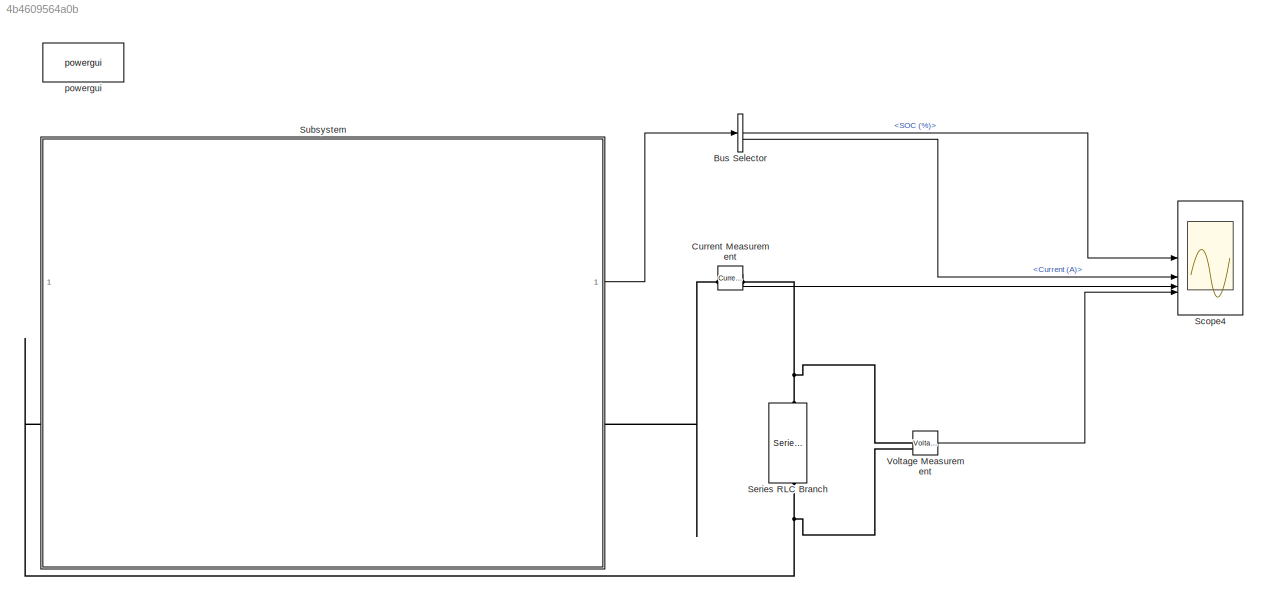
MODEL slx_4b4609564a0b
KIND model
CONFIG AbsTol = auto
CONFIG EnableMultiTasking = off
CONFIG FixedStep = auto
CONFIG MaxStep = auto
CONFIG MinStep = auto
CONFIG RelTol = 1e-3
CONFIG SampleTimeConstraint = Unconstrained
CONFIG SolverName = VariableStepAuto
CONFIG StartTime = 0.0
CONFIG StopTime = 3600
BLOCK [BusSelector] Bus Selector
  OutputSignals = SOC (%),Current (A)
BLOCK [Reference] Current Measurement  REF=spsCurrentMeasurementLib/Current Measurement
  LibrarySourceBlock = sps_lib/Sensors and Measurements/Current Measurement
  SourceBlock = spsCurrentMeasurementLib/Current Measurement
  SourceType = Current Measurement
  UserDataPersistent = on
BLOCK [Scope] Scope4
  Floating = off
  NumInputPorts = 4
  ScopeSpecificationString = Simulink.scopes.TimeScopeBlockCfg('CurrentConfiguration', extmgr.ConfigurationSet(extmgr.Configuration('Core','General UI',true),extmgr.Configuration('Core','Source UI',true),extmgr.Configuration('Sources','WiredSimulink',true,'DataLoggingVariableName','ScopeData4'),extmgr.Configuration('Visuals','Time Domain',true,'SerializedDisplays',{struct('MinYLimReal','-12.49923','MaxYLimReal','112.49991','Y...<+3455ch>
BLOCK [Reference] Series RLC Branch  REF=spsSeriesRLCBranchLib/Series RLC Branch
  LibrarySourceBlock = sps_lib/Passives/Series RLC Branch
  NameLocation = left
  SourceBlock = spsSeriesRLCBranchLib/Series RLC Branch
  SourceType = Series RLC Branch
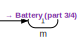
[diagram: Subsystem - part 1/4, top right region]
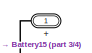
[diagram: Subsystem - part 2/4, middle right region]
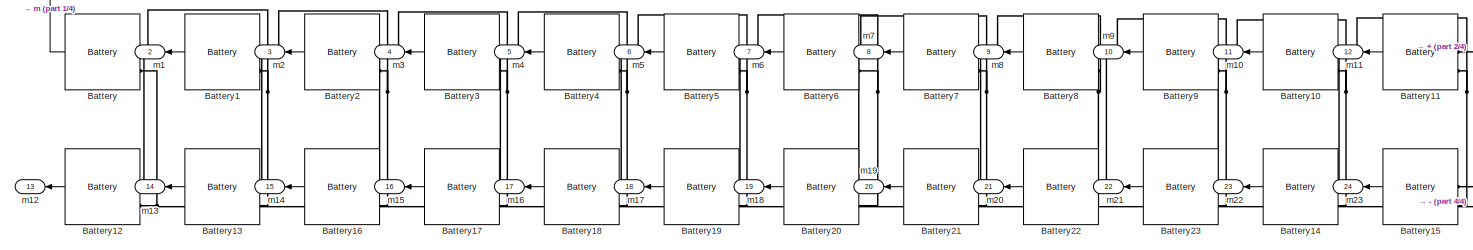
[diagram: Subsystem - part 3/4, full width, bottom band]
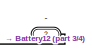
[diagram: Subsystem - part 4/4, bottom right region]
BLOCK [SubSystem] Subsystem
BLOCK [PMIOPort] Subsystem/+
  Side = Right
BLOCK [PMIOPort] Subsystem/-
  Port = 2
  Side = Left
BLOCK [Reference] Subsystem/Battery  REF=spsBatteryLib/Battery
  LibrarySourceBlock = sps_lib/Sources/Battery
  SourceBlock = spsBatteryLib/Battery
  SourceType = Battery
BLOCK [Reference] Subsystem/Battery1  REF=spsBatteryLib/Battery
  LibrarySourceBlock = sps_lib/Sources/Battery
  SourceBlock = spsBatteryLib/Battery
  SourceType = Battery
BLOCK [Reference] Subsystem/Battery10  REF=spsBatteryLib/Battery
  LibrarySourceBlock = sps_lib/Sources/Battery
  SourceBlock = spsBatteryLib/Battery
  SourceType = Battery
BLOCK [Reference] Subsystem/Battery11  REF=spsBatteryLib/Battery
  LibrarySourceBlock = sps_lib/Sources/Battery
  SourceBlock = spsBatteryLib/Battery
  SourceType = Battery
BLOCK [Reference] Subsystem/Battery12  REF=spsBatteryLib/Battery
  LibrarySourceBlock = sps_lib/Sources/Battery
  SourceBlock = spsBatteryLib/Battery
  SourceType = Battery
BLOCK [Reference] Subsystem/Battery13  REF=spsBatteryLib/Battery
  LibrarySourceBlock = sps_lib/Sources/Battery
  SourceBlock = spsBatteryLib/Battery
  SourceType = Battery
BLOCK [Reference] Subsystem/Battery14  REF=spsBatteryLib/Battery
  LibrarySourceBlock = sps_lib/Sources/Battery
  SourceBlock = spsBatteryLib/Battery
  SourceType = Battery
BLOCK [Reference] Subsystem/Battery15  REF=spsBatteryLib/Battery
  LibrarySourceBlock = sps_lib/Sources/Battery
  SourceBlock = spsBatteryLib/Battery
  SourceType = Battery
BLOCK [Reference] Subsystem/Battery16  REF=spsBatteryLib/Battery
  LibrarySourceBlock = sps_lib/Sources/Battery
  SourceBlock = spsBatteryLib/Battery
  SourceType = Battery
BLOCK [Reference] Subsystem/Battery17  REF=spsBatteryLib/Battery
  LibrarySourceBlock = sps_lib/Sources/Battery
  SourceBlock = spsBatteryLib/Battery
  SourceType = Battery
BLOCK [Reference] Subsystem/Battery18  REF=spsBatteryLib/Battery
  LibrarySourceBlock = sps_lib/Sources/Battery
  SourceBlock = spsBatteryLib/Battery
  SourceType = Battery
BLOCK [Reference] Subsystem/Battery19  REF=spsBatteryLib/Battery
  LibrarySourceBlock = sps_lib/Sources/Battery
  SourceBlock = spsBatteryLib/Battery
  SourceType = Battery
BLOCK [Reference] Subsystem/Battery2  REF=spsBatteryLib/Battery
  LibrarySourceBlock = sps_lib/Sources/Battery
  SourceBlock = spsBatteryLib/Battery
  SourceType = Battery
BLOCK [Reference] Subsystem/Battery20  REF=spsBatteryLib/Battery
  LibrarySourceBlock = sps_lib/Sources/Battery
  SourceBlock = spsBatteryLib/Battery
  SourceType = Battery
BLOCK [Reference] Subsystem/Battery21  REF=spsBatteryLib/Battery
  LibrarySourceBlock = sps_lib/Sources/Battery
  SourceBlock = spsBatteryLib/Battery
  SourceType = Battery
BLOCK [Reference] Subsystem/Battery22  REF=spsBatteryLib/Battery
  LibrarySourceBlock = sps_lib/Sources/Battery
  SourceBlock = spsBatteryLib/Battery
  SourceType = Battery
BLOCK [Reference] Subsystem/Battery23  REF=spsBatteryLib/Battery
  LibrarySourceBlock = sps_lib/Sources/Battery
  SourceBlock = spsBatteryLib/Battery
  SourceType = Battery
BLOCK [Reference] Subsystem/Battery3  REF=spsBatteryLib/Battery
  LibrarySourceBlock = sps_lib/Sources/Battery
  SourceBlock = spsBatteryLib/Battery
  SourceType = Battery
BLOCK [Reference] Subsystem/Battery4  REF=spsBatteryLib/Battery
  LibrarySourceBlock = sps_lib/Sources/Battery
  SourceBlock = spsBatteryLib/Battery
  SourceType = Battery
BLOCK [Reference] Subsystem/Battery5  REF=spsBatteryLib/Battery
  LibrarySourceBlock = sps_lib/Sources/Battery
  SourceBlock = spsBatteryLib/Battery
  SourceType = Battery
BLOCK [Reference] Subsystem/Battery6  REF=spsBatteryLib/Battery
  LibrarySourceBlock = sps_lib/Sources/Battery
  SourceBlock = spsBatteryLib/Battery
  SourceType = Battery
BLOCK [Reference] Subsystem/Battery7  REF=spsBatteryLib/Battery
  LibrarySourceBlock = sps_lib/Sources/Battery
  SourceBlock = spsBatteryLib/Battery
  SourceType = Battery
BLOCK [Reference] Subsystem/Battery8  REF=spsBatteryLib/Battery
  LibrarySourceBlock = sps_lib/Sources/Battery
  SourceBlock = spsBatteryLib/Battery
  SourceType = Battery
BLOCK [Reference] Subsystem/Battery9  REF=spsBatteryLib/Battery
  LibrarySourceBlock = sps_lib/Sources/Battery
  SourceBlock = spsBatteryLib/Battery
  SourceType = Battery
BLOCK [Outport] Subsystem/m
BLOCK [Outport] Subsystem/m1
  Port = 2
BLOCK [Outport] Subsystem/m10
  Port = 11
BLOCK [Outport] Subsystem/m11
  Port = 12
BLOCK [Outport] Subsystem/m12
  Port = 13
BLOCK [Outport] Subsystem/m13
  Port = 14
BLOCK [Outport] Subsystem/m14
  Port = 15
BLOCK [Outport] Subsystem/m15
  Port = 16
BLOCK [Outport] Subsystem/m16
  Port = 17
BLOCK [Outport] Subsystem/m17
  Port = 18
BLOCK [Outport] Subsystem/m18
  Port = 19
BLOCK [Outport] Subsystem/m19
  Port = 20
BLOCK [Outport] Subsystem/m2
  Port = 3
BLOCK [Outport] Subsystem/m20
  Port = 21
BLOCK [Outport] Subsystem/m21
  Port = 22
BLOCK [Outport] Subsystem/m22
  Port = 23
BLOCK [Outport] Subsystem/m23
  Port = 24
BLOCK [Outport] Subsystem/m3
  Port = 4
BLOCK [Outport] Subsystem/m4
  Port = 5
BLOCK [Outport] Subsystem/m5
  Port = 6
BLOCK [Outport] Subsystem/m6
  Port = 7
BLOCK [Outport] Subsystem/m7
  Port = 8
BLOCK [Outport] Subsystem/m8
  Port = 9
BLOCK [Outport] Subsystem/m9
  Port = 10
BLOCK [Reference] Voltage Measurement  REF=spsVoltageMeasurementLib/Voltage Measurement
  LibrarySourceBlock = sps_lib/Sensors and Measurements/Voltage Measurement
  SourceBlock = spsVoltageMeasurementLib/Voltage Measurement
  SourceType = Voltage Measurement
  UserDataPersistent = on
BLOCK [Reference] powergui  REF=sps_lib/powergui
  Priority = 1
  SourceBlock = sps_lib/powergui
  SourceType = PSB option menu block
LINE Bus Selector:1 -> Scope4:1
LINE Bus Selector:2 -> Scope4:2
LINE Current Measurement:1 -> Scope4:3
LINE Subsystem/Battery10:1 -> Subsystem/m10:1
LINE Subsystem/Battery11:1 -> Subsystem/m11:1
LINE Subsystem/Battery12:1 -> Subsystem/m12:1
LINE Subsystem/Battery13:1 -> Subsystem/m13:1
LINE Subsystem/Battery14:1 -> Subsystem/m22:1
LINE Subsystem/Battery15:1 -> Subsystem/m23:1
LINE Subsystem/Battery16:1 -> Subsystem/m14:1
LINE Subsystem/Battery17:1 -> Subsystem/m15:1
LINE Subsystem/Battery18:1 -> Subsystem/m16:1
LINE Subsystem/Battery19:1 -> Subsystem/m17:1
LINE Subsystem/Battery1:1 -> Subsystem/m1:1
LINE Subsystem/Battery20:1 -> Subsystem/m18:1
LINE Subsystem/Battery21:1 -> Subsystem/m19:1
LINE Subsystem/Battery22:1 -> Subsystem/m20:1
LINE Subsystem/Battery23:1 -> Subsystem/m21:1
LINE Subsystem/Battery2:1 -> Subsystem/m2:1
LINE Subsystem/Battery3:1 -> Subsystem/m3:1
LINE Subsystem/Battery4:1 -> Subsystem/m4:1
LINE Subsystem/Battery5:1 -> Subsystem/m5:1
LINE Subsystem/Battery6:1 -> Subsystem/m6:1
LINE Subsystem/Battery7:1 -> Subsystem/m7:1
LINE Subsystem/Battery8:1 -> Subsystem/m8:1
LINE Subsystem/Battery9:1 -> Subsystem/m9:1
LINE Subsystem/Battery:1 -> Subsystem/m:1
LINE Subsystem:1 -> Bus Selector:1
LINE Voltage Measurement:1 -> Scope4:4
PLINE Current Measurement:LConn1 -- Subsystem:RConn1
PNET net1: Current Measurement:RConn1 -- Series RLC Branch:LConn1 -- Voltage Measurement:LConn1
PNET net2: Series RLC Branch:RConn1 -- Subsystem:LConn1 -- Voltage Measurement:LConn2
PNET net3: Subsystem/+:RConn1 -- Subsystem/Battery11:LConn1 -- Subsystem/Battery15:LConn1
PNET net4: Subsystem/-:RConn1 -- Subsystem/Battery12:LConn2 -- Subsystem/Battery:LConn2
PNET net5: Subsystem/Battery10:LConn1 -- Subsystem/Battery11:LConn2 -- Subsystem/Battery14:LConn1 -- Subsystem/Battery15:LConn2
PNET net6: Subsystem/Battery10:LConn2 -- Subsystem/Battery14:LConn2 -- Subsystem/Battery23:LConn1 -- Subsystem/Battery9:LConn1
PNET net7: Subsystem/Battery12:LConn1 -- Subsystem/Battery13:LConn2 -- Subsystem/Battery1:LConn2 -- Subsystem/Battery:LConn1
PNET net8: Subsystem/Battery13:LConn1 -- Subsystem/Battery16:LConn2 -- Subsystem/Battery1:LConn1 -- Subsystem/Battery2:LConn2
PNET net9: Subsystem/Battery16:LConn1 -- Subsystem/Battery17:LConn2 -- Subsystem/Battery2:LConn1 -- Subsystem/Battery3:LConn2
PNET net10: Subsystem/Battery17:LConn1 -- Subsystem/Battery18:LConn2 -- Subsystem/Battery3:LConn1 -- Subsystem/Battery4:LConn2
PNET net11: Subsystem/Battery18:LConn1 -- Subsystem/Battery19:LConn2 -- Subsystem/Battery4:LConn1 -- Subsystem/Battery5:LConn2
PNET net12: Subsystem/Battery19:LConn1 -- Subsystem/Battery20:LConn2 -- Subsystem/Battery5:LConn1 -- Subsystem/Battery6:LConn2
PNET net13: Subsystem/Battery20:LConn1 -- Subsystem/Battery21:LConn2 -- Subsystem/Battery6:LConn1 -- Subsystem/Battery7:LConn2
PNET net14: Subsystem/Battery21:LConn1 -- Subsystem/Battery22:LConn2 -- Subsystem/Battery7:LConn1 -- Subsystem/Battery8:LConn2
PNET net15: Subsystem/Battery22:LConn1 -- Subsystem/Battery23:LConn2 -- Subsystem/Battery8:LConn1 -- Subsystem/Battery9:LConn2
note: PNET lines group multi-terminal physical nets as a canonical sorted terminal list (undirected conserving connections); 2-terminal nets keep the pairwise PLINE form
